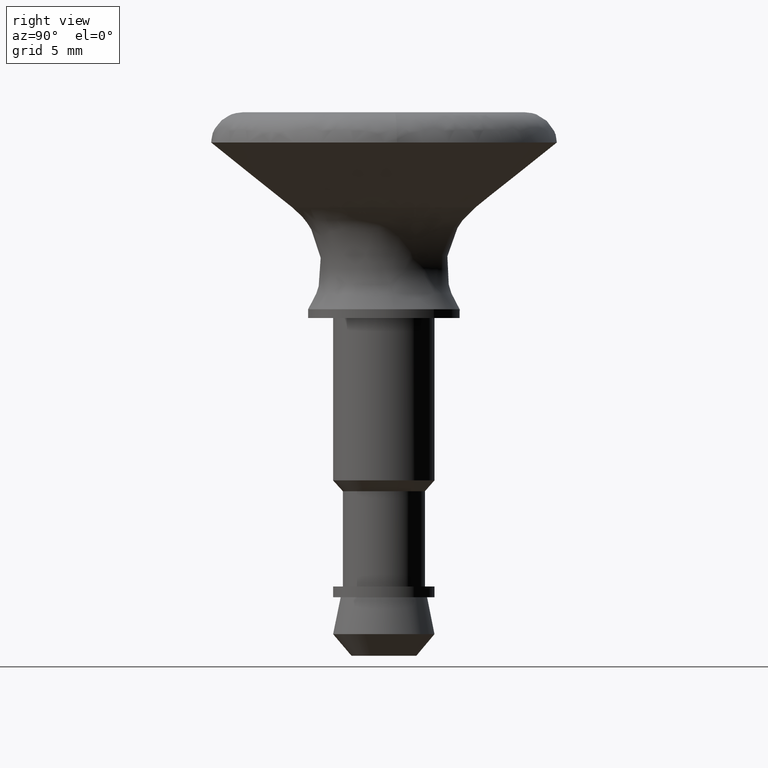
[diagram: clean part render]
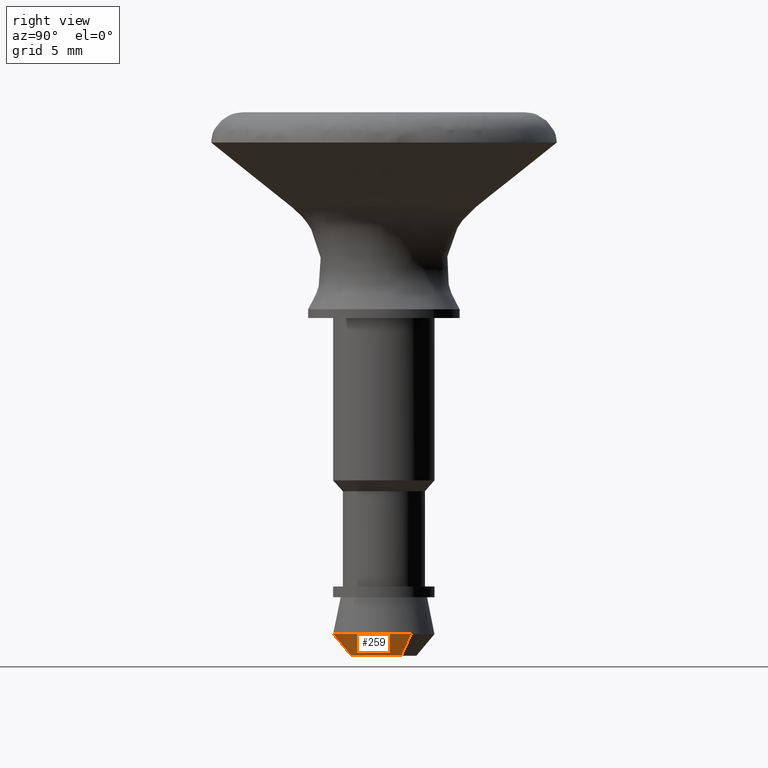
[diagram: same view with one face highlighted and labeled with its STEP entity id]
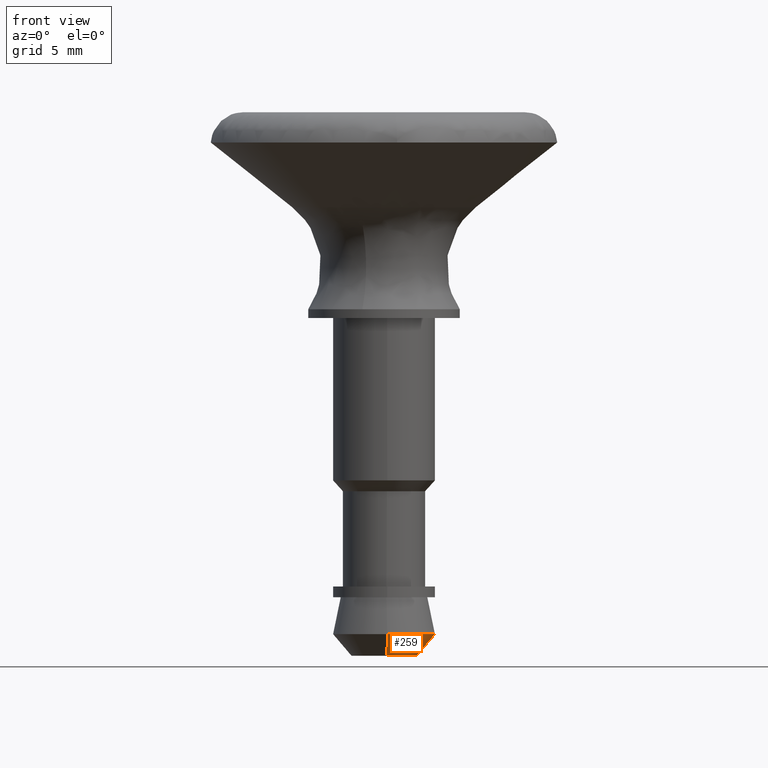
[diagram: same view with one face highlighted and labeled with its STEP entity id]
A machine part, right view. The second image highlights one B-rep face of the part: STEP entity #259.
A second angle (front view) of the same face is appended — the face is thin or edge-on in the first view.
In plain terms, the highlighted face is a freeform B-spline surface patch.
Its self-contained STEP definition (entity closure, byte-faithful):
#68=CARTESIAN_POINT('',(1.981127676719001,1.263938877266958,-14.599905292478541));
#69=VERTEX_POINT('',#68);
#85=CARTESIAN_POINT('',(1.264475769266895,0.806722405133788,-15.599999999996941));
#86=VERTEX_POINT('',#85);
#87=CARTESIAN_POINT('',(1.264475769266895,0.806722405133788,-15.599999999996941));
#88=CARTESIAN_POINT('',(1.981127676719001,1.263938877266958,-14.599905292478541));
#89=QUASI_UNIFORM_CURVE('',1,(#87,#88),.UNSPECIFIED.,.F.,.U.);
#90=EDGE_CURVE('',#86,#69,#89,.T.);
#109=CARTESIAN_POINT('',(0.117680797713968,-1.495276308867751,-15.599999999995440));
#110=VERTEX_POINT('',#109);
#126=CARTESIAN_POINT('',(0.184377345212198,-2.342736295777558,-14.599905292465481));
#127=VERTEX_POINT('',#126);
#128=CARTESIAN_POINT('',(0.117680797713968,-1.495276308867751,-15.599999999995440));
#129=CARTESIAN_POINT('',(0.184377345212198,-2.342736295777558,-14.599905292465481));
#130=QUASI_UNIFORM_CURVE('',1,(#128,#129),.UNSPECIFIED.,.F.,.U.);
#131=EDGE_CURVE('',#110,#127,#130,.T.);
#181=CARTESIAN_POINT('',(0.116013383996325,-1.474089809193741,-15.625002367688021));
#182=CARTESIAN_POINT('',(1.590103193190065,-1.358076425197417,-15.625002367688019));
#183=CARTESIAN_POINT('',(1.474089809193741,0.116013383996325,-15.625002367688021));
#184=CARTESIAN_POINT('',(1.445124146219045,0.484057028071841,-15.625002367688015));
#185=CARTESIAN_POINT('',(1.246559471605975,0.795291993285833,-15.625002367688017));
#186=CARTESIAN_POINT('',(0.186086444145371,-2.364452457937801,-14.574277865599001));
#187=CARTESIAN_POINT('',(2.550538902083173,-2.178366013792430,-14.574277865598992));
#188=CARTESIAN_POINT('',(2.364452457937801,0.186086444145371,-14.574277865599001));
#189=CARTESIAN_POINT('',(2.317991290789663,0.776431546211243,-14.574277865599003));
#190=CARTESIAN_POINT('',(1.999491881852504,1.275655049356489,-14.574277865598996));
#198=(BOUNDED_SURFACE()B_SPLINE_SURFACE(2,1,((#181,#186),(#182,#187),(#183,#188),(#184,#189),(#185,#190)),.UNSPECIFIED.,.F.,.F.,.U.)B_SPLINE_SURFACE_WITH_KNOTS((3,2,3),(2,2),(0.0,3.929666954417374,5.187160379830934),(0.0,1.0),.UNSPECIFIED.)GEOMETRIC_REPRESENTATION_ITEM()RATIONAL_B_SPLINE_SURFACE(((1.0,1.0),(0.707106781186548,0.707106781186548),(1.0,1.0),(0.906274169979695,0.906274169979695),(0.872532871172386,0.872532871172386)))REPRESENTATION_ITEM('')SURFACE());
#199=CARTESIAN_POINT('',(2.349980501392760,0.0,-14.599905292479219));
#200=VERTEX_POINT('',#199);
#201=CARTESIAN_POINT('',(1.981127676719000,1.263938877266958,-14.599905292478542));
#202=CARTESIAN_POINT('',(2.349980501392760,0.685790239912795,-14.599905292479221));
#203=CARTESIAN_POINT('',(2.349980501392760,0.0,-14.599905292479219));
#211=(BOUNDED_CURVE()B_SPLINE_CURVE(2,(#201,#202,#203),.UNSPECIFIED.,.F.,.U.)B_SPLINE_CURVE_WITH_KNOTS((3,3),(0.407950112626114,0.500000000000000),.UNSPECIFIED.)CURVE()GEOMETRIC_REPRESENTATION_ITEM()RATIONAL_B_SPLINE_CURVE((0.863729296954037,0.892156848782587,1.0))REPRESENTATION_ITEM(''));
#212=EDGE_CURVE('',#69,#200,#211,.T.);
#213=ORIENTED_EDGE('',*,*,#212,.T.);
#214=CARTESIAN_POINT('',(2.349980501392760,0.0,-14.599905292479219));
#215=CARTESIAN_POINT('',(2.349980501392760,-2.172299630894904,-14.599905292479216));
#216=CARTESIAN_POINT('',(0.184377345212198,-2.342736295777558,-14.599905292465479));
#224=(BOUNDED_CURVE()B_SPLINE_CURVE(2,(#214,#215,#216),.UNSPECIFIED.,.F.,.U.)B_SPLINE_CURVE_WITH_KNOTS((3,3),(0.500000000000000,0.736331300619019),.UNSPECIFIED.)CURVE()GEOMETRIC_REPRESENTATION_ITEM()RATIONAL_B_SPLINE_CURVE((1.0,0.723120658621303,0.969723356143125))REPRESENTATION_ITEM(''));
#225=EDGE_CURVE('',#200,#127,#224,.T.);
#226=ORIENTED_EDGE('',*,*,#225,.T.);
#227=ORIENTED_EDGE('',*,*,#131,.F.);
#228=CARTESIAN_POINT('',(1.499900000000000,0.0,-15.600000000000000));
#229=VERTEX_POINT('',#228);
#230=CARTESIAN_POINT('',(1.499900000000000,0.0,-15.600000000000000));
#231=CARTESIAN_POINT('',(1.499900000000000,-1.386493298379609,-15.599999999999994));
#232=CARTESIAN_POINT('',(0.117680797713968,-1.495276308867751,-15.599999999995445));
#240=(BOUNDED_CURVE()B_SPLINE_CURVE(2,(#230,#231,#232),.UNSPECIFIED.,.F.,.U.)B_SPLINE_CURVE_WITH_KNOTS((3,3),(0.500000000000000,0.736331300625552),.UNSPECIFIED.)CURVE()GEOMETRIC_REPRESENTATION_ITEM()RATIONAL_B_SPLINE_CURVE((1.0,0.723120658613650,0.969723356156758))REPRESENTATION_ITEM(''));
#241=EDGE_CURVE('',#229,#110,#240,.T.);
#242=ORIENTED_EDGE('',*,*,#241,.F.);
#243=CARTESIAN_POINT('',(1.264475769266895,0.806722405133788,-15.599999999996944));
#244=CARTESIAN_POINT('',(1.499900000000000,0.437712900317940,-15.600000000000001));
#245=CARTESIAN_POINT('',(1.499900000000000,0.0,-15.600000000000000));
#253=(BOUNDED_CURVE()B_SPLINE_CURVE(2,(#243,#244,#245),.UNSPECIFIED.,.F.,.U.)B_SPLINE_CURVE_WITH_KNOTS((3,3),(0.407950112617330,0.500000000000000),.UNSPECIFIED.)CURVE()GEOMETRIC_REPRESENTATION_ITEM()RATIONAL_B_SPLINE_CURVE((0.863729296948611,0.892156848772296,1.0))REPRESENTATION_ITEM(''));
#254=EDGE_CURVE('',#86,#229,#253,.T.);
#255=ORIENTED_EDGE('',*,*,#254,.F.);
#256=ORIENTED_EDGE('',*,*,#90,.T.);
#257=EDGE_LOOP('',(#213,#226,#227,#242,#255,#256));
#258=FACE_OUTER_BOUND('',#257,.T.);
#259=ADVANCED_FACE('',(#258),#198,.T.);